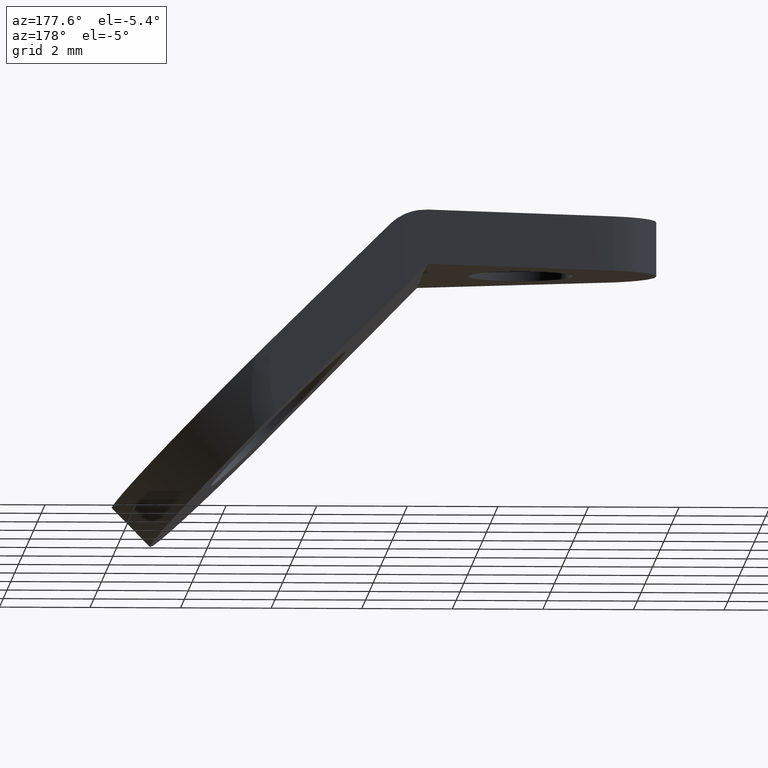
[diagram: clean part render]
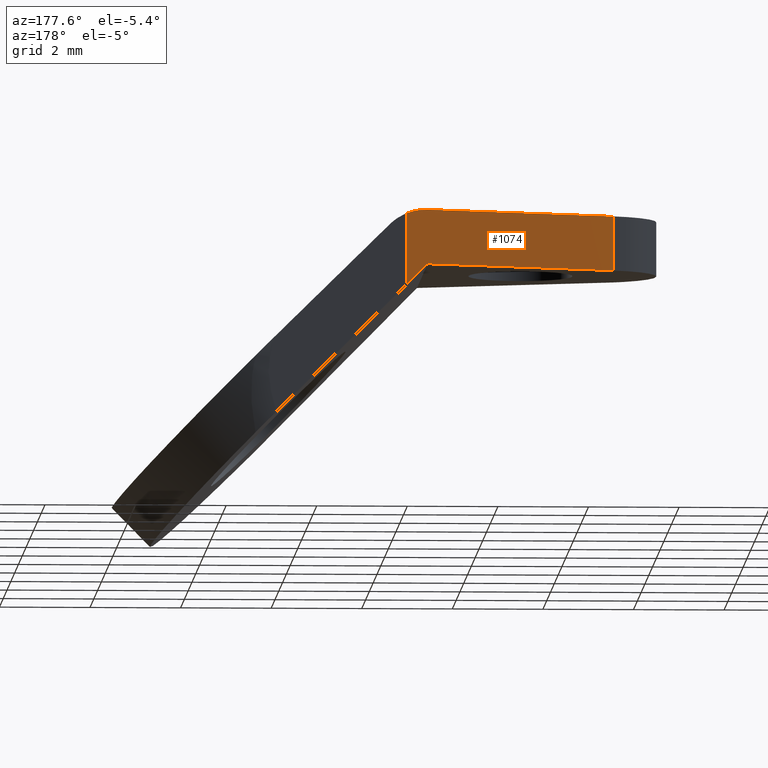
[diagram: same view with one face highlighted and labeled with its STEP entity id]
A machine part, auxiliary view. The second image highlights one B-rep face of the part: STEP entity #1074.
In plain terms, the highlighted face is a freeform B-spline surface patch.
Its self-contained STEP definition (entity closure, byte-faithful):
#678=CARTESIAN_POINT('',(5.163960725152310,2.846130712025075,0.0));
#679=VERTEX_POINT('',#678);
#720=CARTESIAN_POINT('',(5.640569636950740,3.010021842413410,-0.098708056329151));
#721=VERTEX_POINT('',#720);
#727=CARTESIAN_POINT('',(5.163960725152310,2.846130712025075,0.0));
#728=CARTESIAN_POINT('',(5.240324698370420,2.872389931233620,0.000065219358585));
#729=CARTESIAN_POINT('',(5.403241181644069,2.928411893772802,-0.015545538581141));
#730=CARTESIAN_POINT('',(5.560445592692698,2.982469650543593,-0.064110103443656));
#731=CARTESIAN_POINT('',(5.640569636950740,3.010021842413410,-0.098708056329151));
#732=B_SPLINE_CURVE_WITH_KNOTS('',3,(#727,#728,#729,#730,#731),.UNSPECIFIED.,.F.,.U.,(4,1,4),(2.227847E-010,0.242258422331952,0.516817955978250),.UNSPECIFIED.);
#733=EDGE_CURVE('',#679,#721,#732,.T.);
#752=CARTESIAN_POINT('',(5.640569636950740,3.010021842413410,-1.676608636950680));
#753=VERTEX_POINT('',#752);
#761=CARTESIAN_POINT('',(5.640569636950740,3.010021842413410,-0.098708056329151));
#762=CARTESIAN_POINT('',(5.640569636950740,3.010021842413410,-1.676608636950680));
#763=QUASI_UNIFORM_CURVE('',1,(#761,#762),.UNSPECIFIED.,.F.,.U.);
#764=EDGE_CURVE('',#721,#753,#763,.T.);
#1005=CARTESIAN_POINT('',(1.012229000000000,1.418478000000022,0.0));
#1006=VERTEX_POINT('',#1005);
#1007=CARTESIAN_POINT('',(5.163960725152310,2.846130712025075,0.0));
#1008=CARTESIAN_POINT('',(1.012229000000000,1.418478000000022,0.0));
#1009=QUASI_UNIFORM_CURVE('',1,(#1007,#1008),.UNSPECIFIED.,.F.,.U.);
#1010=EDGE_CURVE('',#679,#1006,#1009,.T.);
#1045=CARTESIAN_POINT('',(5.871755329690909,3.089519484137787,-1.760355282333181));
#1046=CARTESIAN_POINT('',(0.781043265879243,1.338980344046131,-1.760355282333181));
#1047=CARTESIAN_POINT('',(5.871755329690909,3.089519484137787,0.083746645382500));
#1048=CARTESIAN_POINT('',(0.781043265879243,1.338980344046131,0.083746645382500));
#1049=B_SPLINE_SURFACE_WITH_KNOTS('',1,1,((#1045,#1047),(#1046,#1048)),.UNSPECIFIED.,.F.,.F.,.U.,(2,2),(2,2),(0.0,5.383283068688703),(0.0,1.844101927715681),.UNSPECIFIED.);
#1050=ORIENTED_EDGE('',*,*,#733,.T.);
#1051=ORIENTED_EDGE('',*,*,#764,.T.);
#1052=CARTESIAN_POINT('',(5.163961000000000,2.846130806536745,-1.199999999999988));
#1053=VERTEX_POINT('',#1052);
#1054=CARTESIAN_POINT('',(5.640569636950740,3.010021842413410,-1.676608636950680));
#1055=CARTESIAN_POINT('',(5.163961000000000,2.846130806536745,-1.199999999999988));
#1056=QUASI_UNIFORM_CURVE('',1,(#1054,#1055),.UNSPECIFIED.,.F.,.U.);
#1057=EDGE_CURVE('',#753,#1053,#1056,.T.);
#1058=ORIENTED_EDGE('',*,*,#1057,.T.);
#1059=CARTESIAN_POINT('',(1.012229000000000,1.418478000000022,-1.199999999999980));
#1060=VERTEX_POINT('',#1059);
#1061=CARTESIAN_POINT('',(5.163961000000000,2.846130806536745,-1.199999999999988));
#1062=CARTESIAN_POINT('',(1.012229000000000,1.418478000000022,-1.199999999999980));
#1063=QUASI_UNIFORM_CURVE('',1,(#1061,#1062),.UNSPECIFIED.,.F.,.U.);
#1064=EDGE_CURVE('',#1053,#1060,#1063,.T.);
#1065=ORIENTED_EDGE('',*,*,#1064,.T.);
#1066=CARTESIAN_POINT('',(1.012229000000000,1.418478000000022,-1.199999999999980));
#1067=CARTESIAN_POINT('',(1.012229000000000,1.418478000000022,0.0));
#1068=QUASI_UNIFORM_CURVE('',1,(#1066,#1067),.UNSPECIFIED.,.F.,.U.);
#1069=EDGE_CURVE('',#1060,#1006,#1068,.T.);
#1070=ORIENTED_EDGE('',*,*,#1069,.T.);
#1071=ORIENTED_EDGE('',*,*,#1010,.F.);
#1072=EDGE_LOOP('',(#1050,#1051,#1058,#1065,#1070,#1071));
#1073=FACE_OUTER_BOUND('',#1072,.T.);
#1074=ADVANCED_FACE('',(#1073),#1049,.T.);